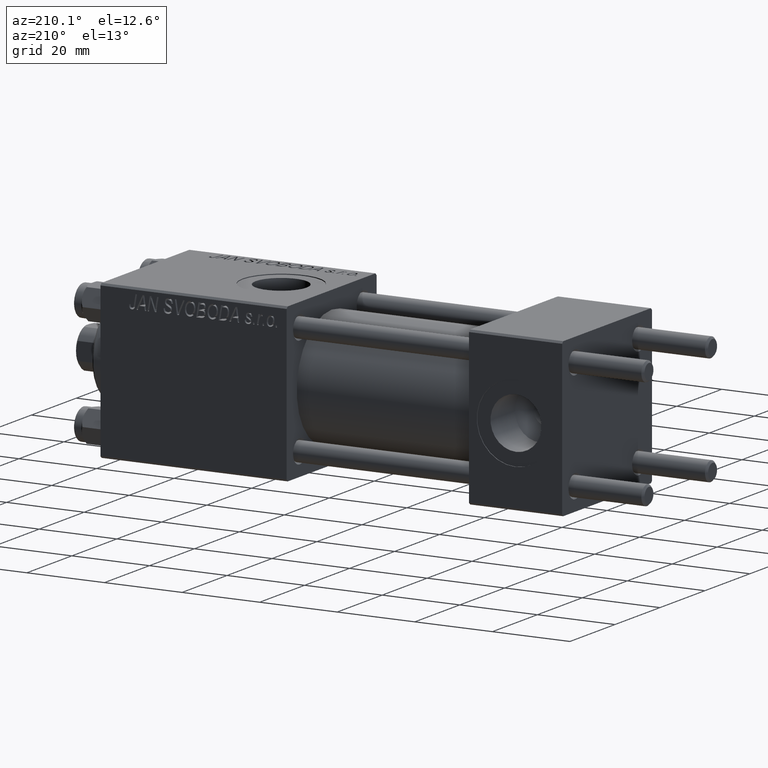
[diagram: clean part render]
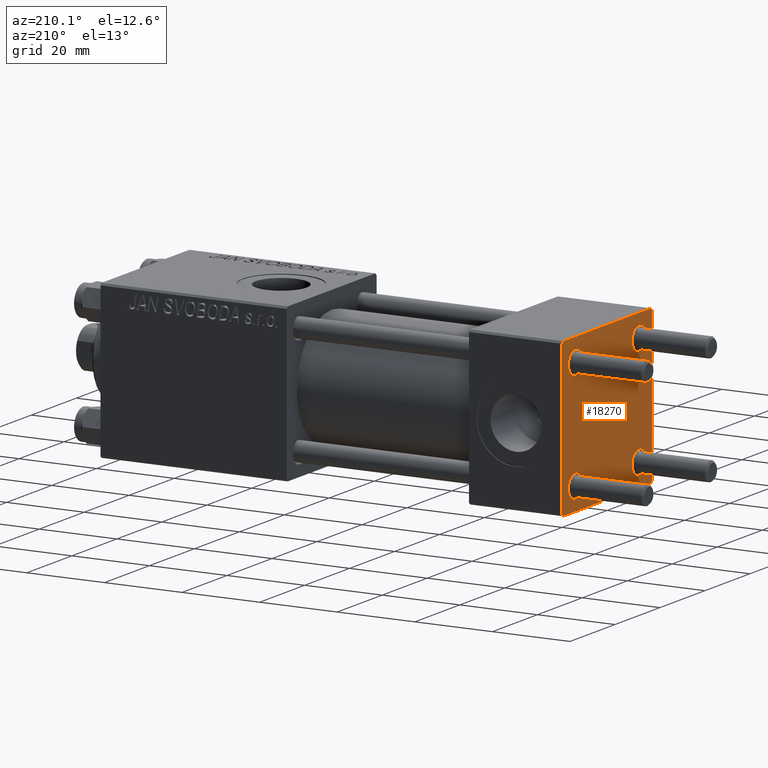
[diagram: same view with one face highlighted and labeled with its STEP entity id]
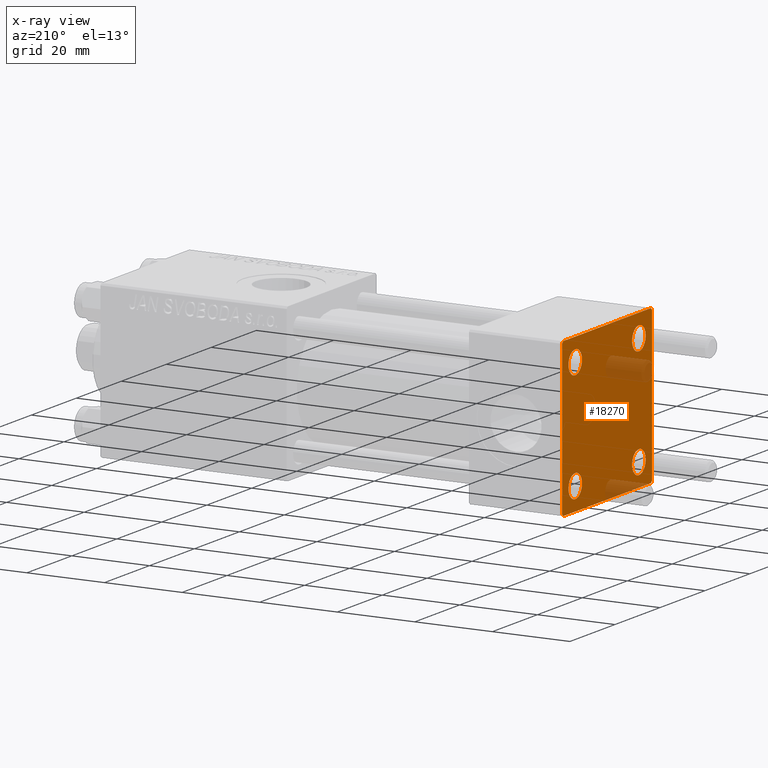
[diagram: x-ray of the same camera — body ghosted, the highlighted face saturated]
A machine part, auxiliary view. The second image highlights one B-rep face of the part: STEP entity #18270.
The next image is the same camera in x-ray: the body ghosted, the highlighted face saturated — about 10% of this face is hidden behind the body in this view.
In plain terms, the highlighted planar face has unit normal (-1, 0, 0).
Its self-contained STEP definition (entity closure, byte-faithful):
#830 = AXIS2_PLACEMENT_3D ( 'NONE', #17550, #36971, #17794 ) ;
#831 = EDGE_LOOP ( 'NONE', ( #22385, #45280 ) ) ;
#1062 = ORIENTED_EDGE ( 'NONE', *, *, #22995, .T. ) ;
#1125 = CIRCLE ( 'NONE', #25305, 3.000000000000000888 ) ;
#1361 = EDGE_CURVE ( 'NONE', #40535, #22464, #12396, .T. ) ;
#1769 = DIRECTION ( 'NONE',  ( 0.000000000000000000, 8.673617379884036705E-17, -1.000000000000000000 ) ) ;
#1871 = VERTEX_POINT ( 'NONE', #31447 ) ;
#2584 = EDGE_CURVE ( 'NONE', #44027, #29344, #5018, .T. ) ;
#2871 = CARTESIAN_POINT ( 'NONE',  ( 0.000000000000000000, 19.50000000000000711, -20.00000000000000711 ) ) ;
#3423 = PLANE ( 'NONE',  #46354 ) ;
#4009 = DIRECTION ( 'NONE',  ( -0.000000000000000000, -0.7071067811865524577, -0.7071067811865426878 ) ) ;
#4319 = DIRECTION ( 'NONE',  ( 1.000000000000000000, 0.000000000000000000, 0.000000000000000000 ) ) ;
#4782 = EDGE_LOOP ( 'NONE', ( #43483, #43023 ) ) ;
#4797 = DIRECTION ( 'NONE',  ( 1.000000000000000000, 0.000000000000000000, 0.000000000000000000 ) ) ;
#5018 = LINE ( 'NONE', #35051, #25839 ) ;
#5362 = CARTESIAN_POINT ( 'NONE',  ( 0.000000000000000000, -20.00000000000000000, -19.49999999999999645 ) ) ;
#5385 = ORIENTED_EDGE ( 'NONE', *, *, #47643, .F. ) ;
#5981 = LINE ( 'NONE', #25158, #45492 ) ;
#6585 = VERTEX_POINT ( 'NONE', #39339 ) ;
#7371 = EDGE_LOOP ( 'NONE', ( #32903, #11173, #41972, #8197, #44203, #9232, #5385, #35646 ) ) ;
#8197 = ORIENTED_EDGE ( 'NONE', *, *, #49031, .T. ) ;
#9088 = CARTESIAN_POINT ( 'NONE',  ( 0.000000000000000000, 14.14999999999999858, 14.15000000000000036 ) ) ;
#9232 = ORIENTED_EDGE ( 'NONE', *, *, #19449, .T. ) ;
#9723 = VERTEX_POINT ( 'NONE', #22635 ) ;
#10524 = DIRECTION ( 'NONE',  ( 0.000000000000000000, 0.000000000000000000, 1.000000000000000000 ) ) ;
#10856 = AXIS2_PLACEMENT_3D ( 'NONE', #9088, #13632, #25471 ) ;
#10947 = ORIENTED_EDGE ( 'NONE', *, *, #48018, .T. ) ;
#11173 = ORIENTED_EDGE ( 'NONE', *, *, #2584, .T. ) ;
#11432 = CIRCLE ( 'NONE', #14678, 3.000000000000000888 ) ;
#12182 = CARTESIAN_POINT ( 'NONE',  ( -0.000000000000000000, -19.74999999999992539, 19.75000000000006395 ) ) ;
#12396 = LINE ( 'NONE', #31560, #42726 ) ;
#12524 = VECTOR ( 'NONE', #23541, 1000.000000000000114 ) ;
#12931 = VERTEX_POINT ( 'NONE', #5362 ) ;
#13146 = CARTESIAN_POINT ( 'NONE',  ( 0.000000000000000000, 20.00000000000000000, 19.49999999999999289 ) ) ;
#13373 = DIRECTION ( 'NONE',  ( 1.000000000000000000, 0.000000000000000000, 0.000000000000000000 ) ) ;
#13632 = DIRECTION ( 'NONE',  ( 1.000000000000000000, 0.000000000000000000, 0.000000000000000000 ) ) ;
#13635 = CARTESIAN_POINT ( 'NONE',  ( 0.000000000000000000, 14.14999999999999858, 17.15000000000000568 ) ) ;
#14678 = AXIS2_PLACEMENT_3D ( 'NONE', #25301, #16728, #21513 ) ;
#15442 = CARTESIAN_POINT ( 'NONE',  ( 0.000000000000000000, -20.00000000000000355, 19.49999999999998224 ) ) ;
#15566 = EDGE_LOOP ( 'NONE', ( #10947, #20100 ) ) ;
#16080 = VERTEX_POINT ( 'NONE', #26825 ) ;
#16207 = VERTEX_POINT ( 'NONE', #31356 ) ;
#16522 = EDGE_CURVE ( 'NONE', #20066, #9723, #34199, .T. ) ;
#16728 = DIRECTION ( 'NONE',  ( 1.000000000000000000, 0.000000000000000000, 0.000000000000000000 ) ) ;
#16881 = VECTOR ( 'NONE', #1769, 1000.000000000000000 ) ;
#17403 = CARTESIAN_POINT ( 'NONE',  ( 0.000000000000000000, -14.14999999999999503, 14.15000000000000391 ) ) ;
#17550 = CARTESIAN_POINT ( 'NONE',  ( 0.000000000000000000, 14.14999999999999858, -14.15000000000000036 ) ) ;
#17794 = DIRECTION ( 'NONE',  ( 0.000000000000000000, 0.000000000000000000, 1.000000000000000000 ) ) ;
#17891 = EDGE_CURVE ( 'NONE', #6585, #16207, #23795, .T. ) ;
#18270 = ADVANCED_FACE ( 'NONE', ( #45829, #30908, #41545, #37993, #37746 ), #3423, .T. ) ;
#19057 = CARTESIAN_POINT ( 'NONE',  ( 0.000000000000000000, 0.000000000000000000, 0.000000000000000000 ) ) ;
#19449 = EDGE_CURVE ( 'NONE', #37919, #16080, #39696, .T. ) ;
#19910 = LINE ( 'NONE', #23691, #44706 ) ;
#19971 = CARTESIAN_POINT ( 'NONE',  ( 0.000000000000000000, -14.14999999999999503, -14.15000000000000391 ) ) ;
#20066 = VERTEX_POINT ( 'NONE', #27312 ) ;
#20100 = ORIENTED_EDGE ( 'NONE', *, *, #40870, .T. ) ;
#20707 = LINE ( 'NONE', #43946, #48186 ) ;
#21137 = CARTESIAN_POINT ( 'NONE',  ( 0.000000000000000000, 14.14999999999999858, -17.15000000000000213 ) ) ;
#21513 = DIRECTION ( 'NONE',  ( 0.000000000000000000, 0.000000000000000000, 1.000000000000000000 ) ) ;
#21829 = VERTEX_POINT ( 'NONE', #21137 ) ;
#22385 = ORIENTED_EDGE ( 'NONE', *, *, #16522, .T. ) ;
#22464 = VERTEX_POINT ( 'NONE', #13146 ) ;
#22635 = CARTESIAN_POINT ( 'NONE',  ( 0.000000000000000000, -14.14999999999999503, 11.15000000000000213 ) ) ;
#22995 = EDGE_CURVE ( 'NONE', #1871, #21829, #27974, .T. ) ;
#23179 = DIRECTION ( 'NONE',  ( 0.000000000000000000, -0.7071067811865401342, 0.7071067811865549002 ) ) ;
#23541 = DIRECTION ( 'NONE',  ( -0.000000000000000000, 0.7071067811865500152, 0.7071067811865451302 ) ) ;
#23691 = CARTESIAN_POINT ( 'NONE',  ( 0.000000000000000000, -19.75000000000020961, -19.74999999999979394 ) ) ;
#23692 = EDGE_CURVE ( 'NONE', #29344, #40218, #20707, .T. ) ;
#23730 = DIRECTION ( 'NONE',  ( 0.000000000000000000, 0.000000000000000000, 1.000000000000000000 ) ) ;
#23795 = CIRCLE ( 'NONE', #42321, 3.000000000000000888 ) ;
#24060 = LINE ( 'NONE', #36852, #16881 ) ;
#24248 = DIRECTION ( 'NONE',  ( 0.000000000000000000, 0.7071067811865425767, -0.7071067811865525687 ) ) ;
#25158 = CARTESIAN_POINT ( 'NONE',  ( 0.000000000000000000, 20.00000000000000000, 20.00000000000000000 ) ) ;
#25301 = CARTESIAN_POINT ( 'NONE',  ( 0.000000000000000000, 14.14999999999999858, 14.15000000000000036 ) ) ;
#25305 = AXIS2_PLACEMENT_3D ( 'NONE', #17403, #13373, #40364 ) ;
#25406 = DIRECTION ( 'NONE',  ( 0.000000000000000000, -1.000000000000000000, -2.602085213965210149E-16 ) ) ;
#25471 = DIRECTION ( 'NONE',  ( 0.000000000000000000, 0.000000000000000000, 1.000000000000000000 ) ) ;
#25566 = AXIS2_PLACEMENT_3D ( 'NONE', #29448, #41067, #10524 ) ;
#25839 = VECTOR ( 'NONE', #4009, 1000.000000000000000 ) ;
#26622 = DIRECTION ( 'NONE',  ( -0.000000000000000000, 0.000000000000000000, 1.000000000000000000 ) ) ;
#26825 = CARTESIAN_POINT ( 'NONE',  ( 0.000000000000000000, -19.49999999999999289, 19.99999999999998934 ) ) ;
#27271 = DIRECTION ( 'NONE',  ( 0.000000000000000000, 0.000000000000000000, 1.000000000000000000 ) ) ;
#27312 = CARTESIAN_POINT ( 'NONE',  ( 0.000000000000000000, -14.14999999999999503, 17.15000000000000568 ) ) ;
#27974 = CIRCLE ( 'NONE', #25566, 3.000000000000000888 ) ;
#29046 = CIRCLE ( 'NONE', #830, 3.000000000000000888 ) ;
#29344 = VERTEX_POINT ( 'NONE', #2871 ) ;
#29448 = CARTESIAN_POINT ( 'NONE',  ( 0.000000000000000000, 14.14999999999999858, -14.15000000000000036 ) ) ;
#29824 = VERTEX_POINT ( 'NONE', #13635 ) ;
#30908 = FACE_BOUND ( 'NONE', #4782, .T. ) ;
#31356 = CARTESIAN_POINT ( 'NONE',  ( 0.000000000000000000, -14.14999999999999503, -17.15000000000000568 ) ) ;
#31447 = CARTESIAN_POINT ( 'NONE',  ( 0.000000000000000000, 14.14999999999999858, -11.15000000000000036 ) ) ;
#31560 = CARTESIAN_POINT ( 'NONE',  ( -0.000000000000000000, 19.75000000000013500, 19.74999999999986144 ) ) ;
#31737 = EDGE_CURVE ( 'NONE', #37919, #12931, #24060, .T. ) ;
#32903 = ORIENTED_EDGE ( 'NONE', *, *, #38636, .T. ) ;
#33404 = CIRCLE ( 'NONE', #10856, 3.000000000000000888 ) ;
#33508 = CARTESIAN_POINT ( 'NONE',  ( 0.000000000000000000, -14.14999999999999503, -14.15000000000000391 ) ) ;
#33751 = DIRECTION ( 'NONE',  ( 0.000000000000000000, 0.000000000000000000, 1.000000000000000000 ) ) ;
#34199 = CIRCLE ( 'NONE', #35022, 3.000000000000000888 ) ;
#34364 = CARTESIAN_POINT ( 'NONE',  ( 0.000000000000000000, 14.14999999999999858, 11.14999999999999858 ) ) ;
#34901 = EDGE_CURVE ( 'NONE', #21829, #1871, #29046, .T. ) ;
#35022 = AXIS2_PLACEMENT_3D ( 'NONE', #46705, #4797, #23730 ) ;
#35051 = CARTESIAN_POINT ( 'NONE',  ( -0.000000000000000000, 19.74999999999986855, -19.75000000000014211 ) ) ;
#35445 = DIRECTION ( 'NONE',  ( 0.000000000000000000, 0.000000000000000000, -1.000000000000000000 ) ) ;
#35646 = ORIENTED_EDGE ( 'NONE', *, *, #1361, .T. ) ;
#36100 = DIRECTION ( 'NONE',  ( 0.000000000000000000, -1.000000000000000000, 1.734723475976807094E-16 ) ) ;
#36852 = CARTESIAN_POINT ( 'NONE',  ( 0.000000000000000000, -20.00000000000000355, 19.99999999999998934 ) ) ;
#36971 = DIRECTION ( 'NONE',  ( 1.000000000000000000, 0.000000000000000000, 0.000000000000000000 ) ) ;
#37746 = FACE_OUTER_BOUND ( 'NONE', #7371, .T. ) ;
#37919 = VERTEX_POINT ( 'NONE', #15442 ) ;
#37993 = FACE_BOUND ( 'NONE', #15566, .T. ) ;
#38037 = VERTEX_POINT ( 'NONE', #34364 ) ;
#38636 = EDGE_CURVE ( 'NONE', #22464, #44027, #42292, .T. ) ;
#39339 = CARTESIAN_POINT ( 'NONE',  ( 0.000000000000000000, -14.14999999999999503, -11.15000000000000391 ) ) ;
#39696 = LINE ( 'NONE', #12182, #12524 ) ;
#40218 = VERTEX_POINT ( 'NONE', #41057 ) ;
#40364 = DIRECTION ( 'NONE',  ( 0.000000000000000000, 0.000000000000000000, 1.000000000000000000 ) ) ;
#40535 = VERTEX_POINT ( 'NONE', #48340 ) ;
#40701 = CIRCLE ( 'NONE', #45532, 3.000000000000000888 ) ;
#40870 = EDGE_CURVE ( 'NONE', #38037, #29824, #11432, .T. ) ;
#41057 = CARTESIAN_POINT ( 'NONE',  ( 0.000000000000000000, -19.50000000000000711, -20.00000000000000000 ) ) ;
#41067 = DIRECTION ( 'NONE',  ( 1.000000000000000000, 0.000000000000000000, 0.000000000000000000 ) ) ;
#41545 = FACE_BOUND ( 'NONE', #48869, .T. ) ;
#41972 = ORIENTED_EDGE ( 'NONE', *, *, #23692, .T. ) ;
#42292 = LINE ( 'NONE', #46570, #47659 ) ;
#42321 = AXIS2_PLACEMENT_3D ( 'NONE', #33508, #48924, #33751 ) ;
#42726 = VECTOR ( 'NONE', #24248, 999.9999999999998863 ) ;
#43023 = ORIENTED_EDGE ( 'NONE', *, *, #48821, .T. ) ;
#43483 = ORIENTED_EDGE ( 'NONE', *, *, #17891, .T. ) ;
#43946 = CARTESIAN_POINT ( 'NONE',  ( 0.000000000000000000, 20.00000000000000000, -20.00000000000000711 ) ) ;
#44027 = VERTEX_POINT ( 'NONE', #46662 ) ;
#44203 = ORIENTED_EDGE ( 'NONE', *, *, #31737, .F. ) ;
#44706 = VECTOR ( 'NONE', #23179, 1000.000000000000000 ) ;
#45280 = ORIENTED_EDGE ( 'NONE', *, *, #47255, .T. ) ;
#45492 = VECTOR ( 'NONE', #25406, 1000.000000000000000 ) ;
#45532 = AXIS2_PLACEMENT_3D ( 'NONE', #19971, #4319, #27271 ) ;
#45829 = FACE_BOUND ( 'NONE', #831, .T. ) ;
#46330 = DIRECTION ( 'NONE',  ( -1.000000000000000000, 0.000000000000000000, -0.000000000000000000 ) ) ;
#46354 = AXIS2_PLACEMENT_3D ( 'NONE', #19057, #46330, #26622 ) ;
#46570 = CARTESIAN_POINT ( 'NONE',  ( 0.000000000000000000, 20.00000000000000000, 20.00000000000000000 ) ) ;
#46662 = CARTESIAN_POINT ( 'NONE',  ( 0.000000000000000000, 20.00000000000000000, -19.50000000000002132 ) ) ;
#46705 = CARTESIAN_POINT ( 'NONE',  ( 0.000000000000000000, -14.14999999999999503, 14.15000000000000391 ) ) ;
#47255 = EDGE_CURVE ( 'NONE', #9723, #20066, #1125, .T. ) ;
#47643 = EDGE_CURVE ( 'NONE', #40535, #16080, #5981, .T. ) ;
#47659 = VECTOR ( 'NONE', #35445, 1000.000000000000000 ) ;
#48018 = EDGE_CURVE ( 'NONE', #29824, #38037, #33404, .T. ) ;
#48186 = VECTOR ( 'NONE', #36100, 1000.000000000000000 ) ;
#48340 = CARTESIAN_POINT ( 'NONE',  ( 0.000000000000000000, 19.50000000000000000, 20.00000000000000000 ) ) ;
#48821 = EDGE_CURVE ( 'NONE', #16207, #6585, #40701, .T. ) ;
#48869 = EDGE_LOOP ( 'NONE', ( #1062, #49774 ) ) ;
#48924 = DIRECTION ( 'NONE',  ( 1.000000000000000000, 0.000000000000000000, 0.000000000000000000 ) ) ;
#49031 = EDGE_CURVE ( 'NONE', #40218, #12931, #19910, .T. ) ;
#49774 = ORIENTED_EDGE ( 'NONE', *, *, #34901, .T. ) ;